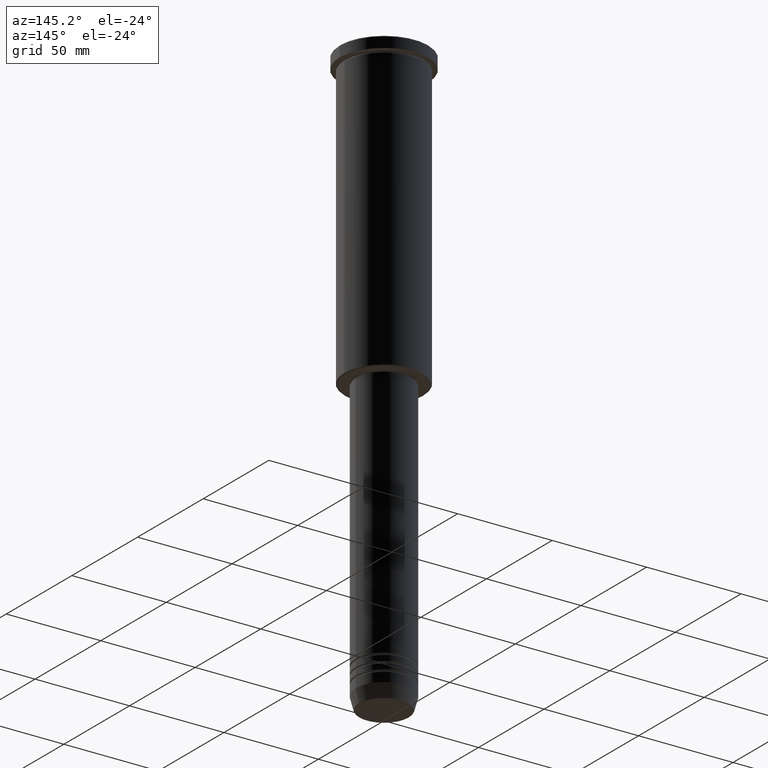
[diagram: clean part render]
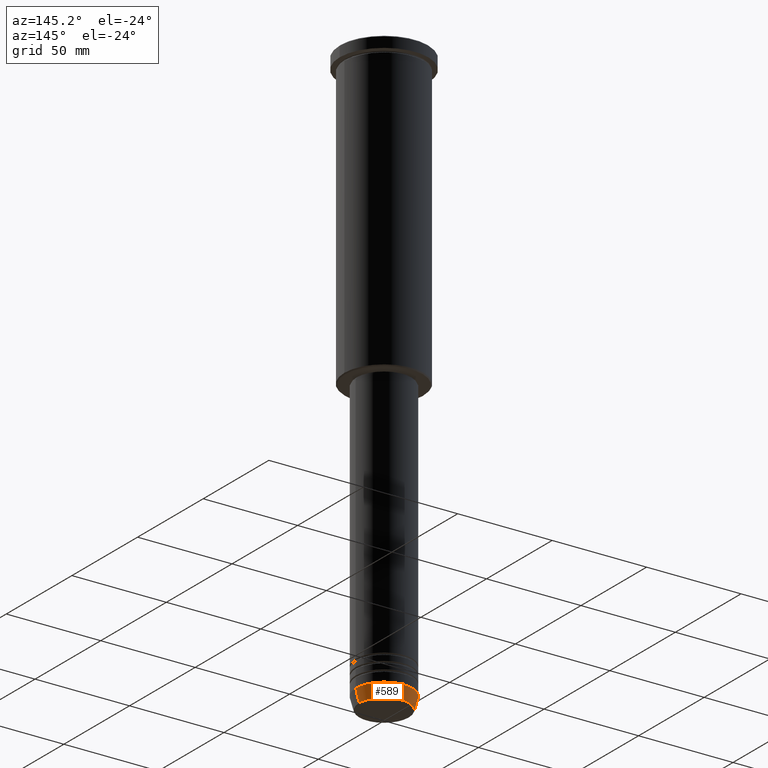
[diagram: same view with one face highlighted and labeled with its STEP entity id]
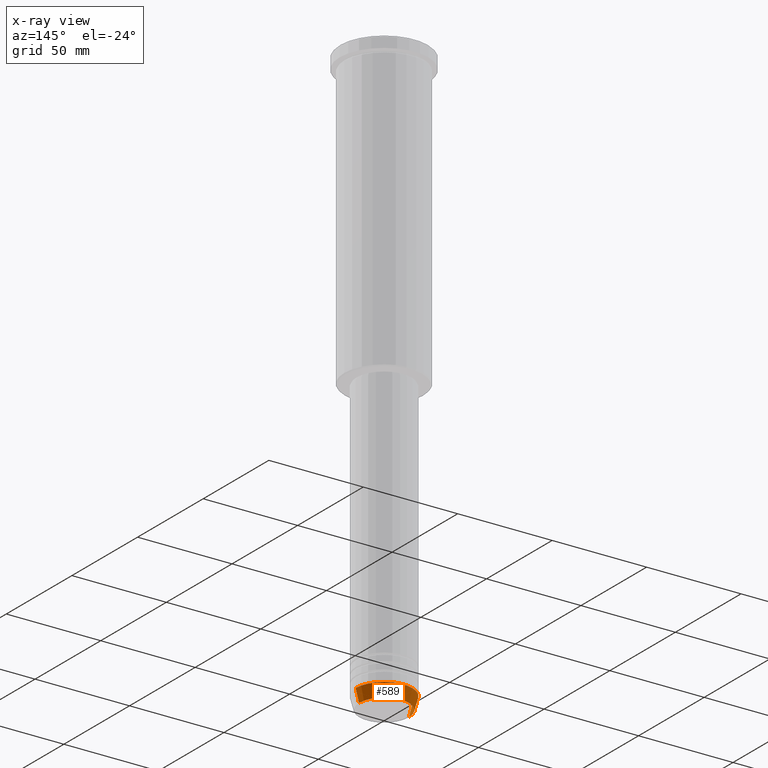
[diagram: x-ray of the same camera — body ghosted, the highlighted face saturated]
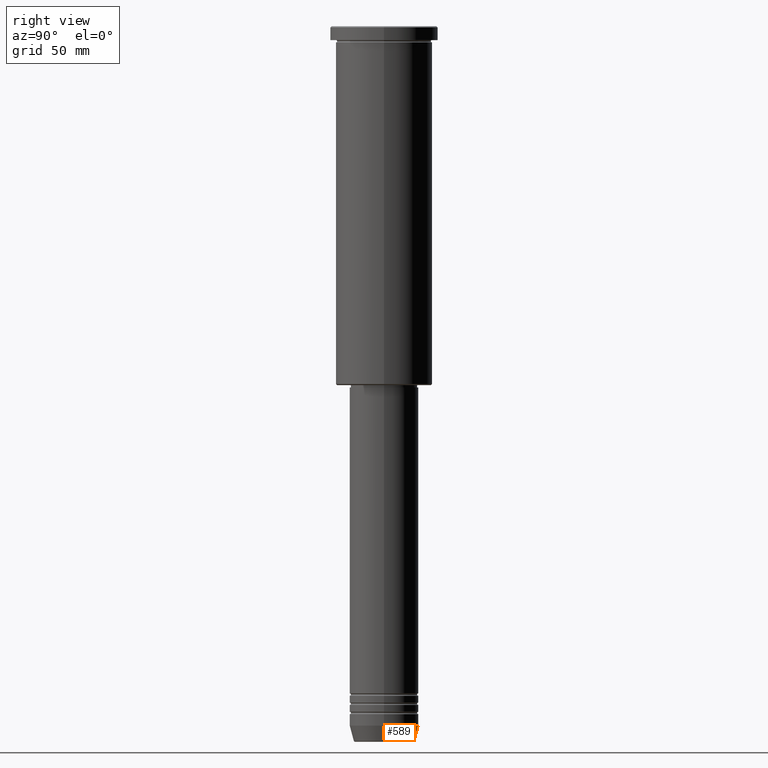
[diagram: same view with one face highlighted and labeled with its STEP entity id]
A machine part, auxiliary view. The second image highlights one B-rep face of the part: STEP entity #589.
The next image is the same camera in x-ray: the body ghosted, the highlighted face saturated — about 0% of this face is hidden behind the body in this view.
A second angle (right view) of the same face is appended — the face is thin or edge-on in the first view.
In plain terms, the highlighted conical surface has half-angle 15 deg.
Its self-contained STEP definition (entity closure, byte-faithful):
#9 = DIRECTION ( 'NONE',  ( -0.000000000000000000, -0.000000000000000000, 1.000000000000000000 ) ) ;
#42 = AXIS2_PLACEMENT_3D ( 'NONE', #492, #765, #864 ) ;
#46 = EDGE_CURVE ( 'NONE', #451, #503, #1151, .T. ) ;
#232 = LINE ( 'NONE', #506, #856 ) ;
#294 = VECTOR ( 'NONE', #307, 1000.000000000000000 ) ;
#307 = DIRECTION ( 'NONE',  ( 0.2588190451025213501, 0.000000000000000000, 0.9659258262890680902 ) ) ;
#324 = CIRCLE ( 'NONE', #42, 15.00000000000000000 ) ;
#354 = DIRECTION ( 'NONE',  ( 1.000000000000000000, 0.000000000000000000, 0.000000000000000000 ) ) ;
#366 = CARTESIAN_POINT ( 'NONE',  ( -13.22365507213718772, 1.728200442216588386E-15, -310.6294095225513274 ) ) ;
#382 = CARTESIAN_POINT ( 'NONE',  ( 13.22365507213718772, 0.000000000000000000, -310.6294095225513274 ) ) ;
#429 = CARTESIAN_POINT ( 'NONE',  ( -15.00000000000000000, 1.836970198721029589E-15, -304.0000000000000000 ) ) ;
#444 = ORIENTED_EDGE ( 'NONE', *, *, #930, .F. ) ;
#451 = VERTEX_POINT ( 'NONE', #382 ) ;
#463 = CARTESIAN_POINT ( 'NONE',  ( 0.000000000000000000, 0.000000000000000000, -304.0000000000000000 ) ) ;
#466 = ORIENTED_EDGE ( 'NONE', *, *, #1023, .T. ) ;
#482 = EDGE_CURVE ( 'NONE', #451, #491, #595, .T. ) ;
#484 = ORIENTED_EDGE ( 'NONE', *, *, #46, .T. ) ;
#491 = VERTEX_POINT ( 'NONE', #678 ) ;
#492 = CARTESIAN_POINT ( 'NONE',  ( 0.000000000000000000, 0.000000000000000000, -304.0000000000000000 ) ) ;
#496 = CARTESIAN_POINT ( 'NONE',  ( 15.00000000000000000, 0.000000000000000000, -304.0000000000000000 ) ) ;
#503 = VERTEX_POINT ( 'NONE', #366 ) ;
#506 = CARTESIAN_POINT ( 'NONE',  ( -15.00000000000000000, 1.836970198721029589E-15, -304.0000000000000000 ) ) ;
#589 = ADVANCED_FACE ( 'NONE', ( #924 ), #868, .T. ) ;
#595 = LINE ( 'NONE', #496, #294 ) ;
#622 = CARTESIAN_POINT ( 'NONE',  ( 0.000000000000000000, 0.000000000000000000, -310.6294095225513274 ) ) ;
#659 = AXIS2_PLACEMENT_3D ( 'NONE', #622, #988, #970 ) ;
#678 = CARTESIAN_POINT ( 'NONE',  ( 15.00000000000000000, 0.000000000000000000, -304.0000000000000000 ) ) ;
#765 = DIRECTION ( 'NONE',  ( -0.000000000000000000, -0.000000000000000000, 1.000000000000000000 ) ) ;
#856 = VECTOR ( 'NONE', #1133, 1000.000000000000000 ) ;
#864 = DIRECTION ( 'NONE',  ( 1.000000000000000000, 0.000000000000000000, 0.000000000000000000 ) ) ;
#868 = CONICAL_SURFACE ( 'NONE', #945, 15.00000000000000000, 0.2617993877991500740 ) ;
#924 = FACE_OUTER_BOUND ( 'NONE', #1161, .T. ) ;
#930 = EDGE_CURVE ( 'NONE', #491, #1143, #324, .T. ) ;
#945 = AXIS2_PLACEMENT_3D ( 'NONE', #463, #9, #354 ) ;
#970 = DIRECTION ( 'NONE',  ( 1.000000000000000000, 0.000000000000000000, 0.000000000000000000 ) ) ;
#988 = DIRECTION ( 'NONE',  ( -0.000000000000000000, -0.000000000000000000, 1.000000000000000000 ) ) ;
#1023 = EDGE_CURVE ( 'NONE', #503, #1143, #232, .T. ) ;
#1133 = DIRECTION ( 'NONE',  ( -0.2588190451025213501, 3.169619151431772337E-17, 0.9659258262890680902 ) ) ;
#1143 = VERTEX_POINT ( 'NONE', #429 ) ;
#1151 = CIRCLE ( 'NONE', #659, 13.22365507213718772 ) ;
#1161 = EDGE_LOOP ( 'NONE', ( #484, #466, #444, #1170 ) ) ;
#1170 = ORIENTED_EDGE ( 'NONE', *, *, #482, .F. ) ;